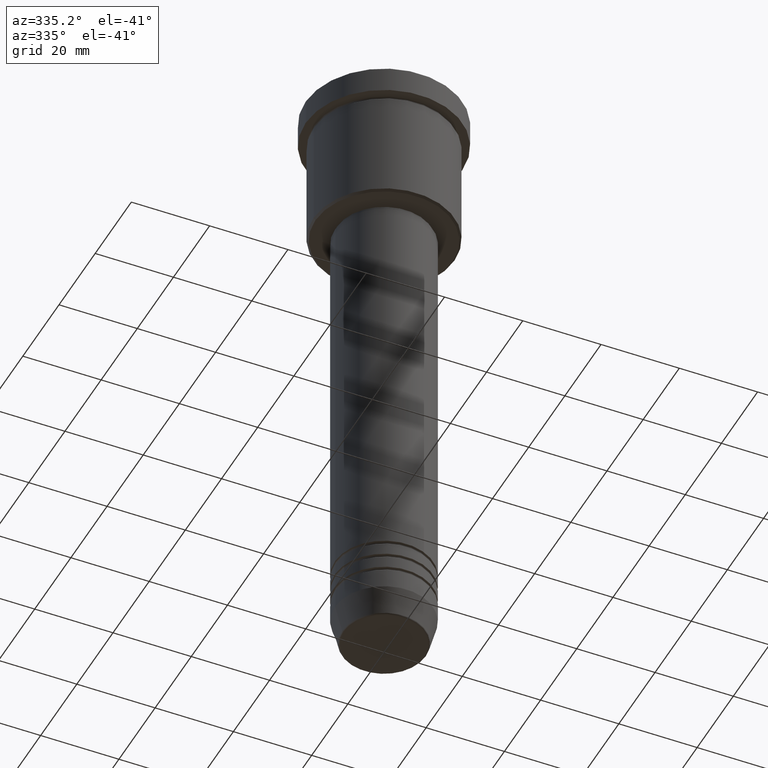
[diagram: clean part render]
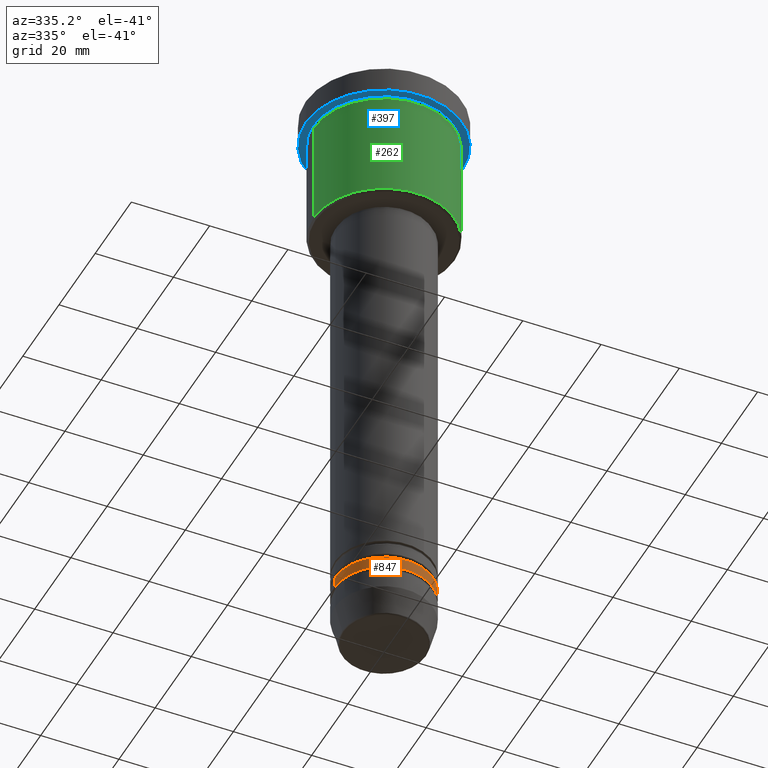
[diagram: same view with three faces highlighted in distinct colors, each labeled with its STEP entity id]
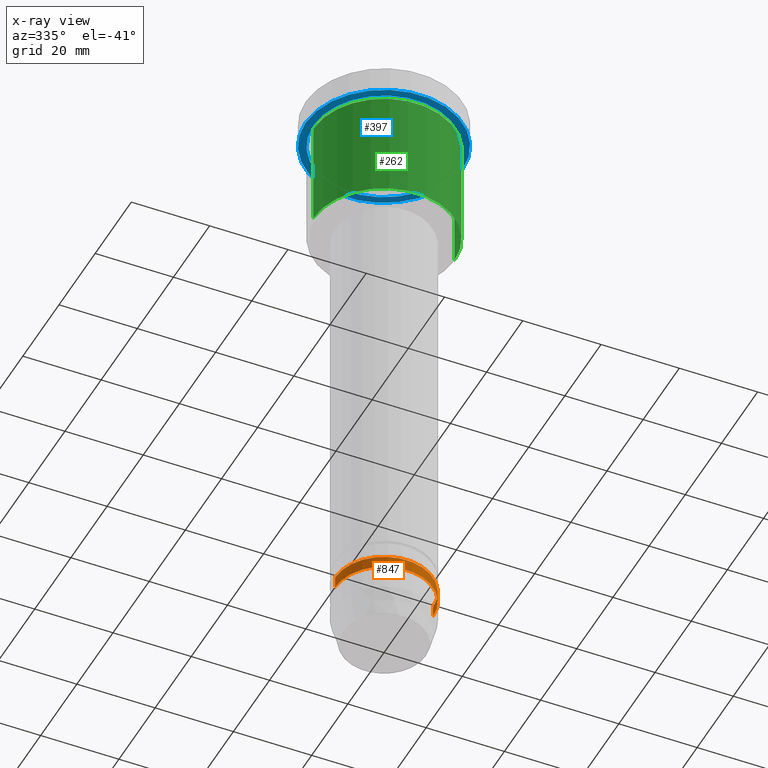
[diagram: x-ray of the same camera — body ghosted, the three highlighted faces saturated]
A machine part, auxiliary view with three faces highlighted in distinct colors.
The next image is the same camera in x-ray (body ghosted, the three faces saturated) — at least one of them is partly hidden behind the body in this view.
Their STEP definitions:

[orange] entity #847 — the highlighted cylindrical surface (partial cylindrical patch) has radius 12.5 mm, axis along (-0, -0, 1).
#36 = DIRECTION ( 'NONE',  ( -0.000000000000000000, -0.000000000000000000, 1.000000000000000000 ) ) ;
#38 = EDGE_CURVE ( 'NONE', #1022, #702, #670, .T. ) ;
#44 = DIRECTION ( 'NONE',  ( -0.000000000000000000, -0.000000000000000000, 1.000000000000000000 ) ) ;
#182 = CARTESIAN_POINT ( 'NONE',  ( 12.50000000000000000, 0.000000000000000000, -146.9999999999999716 ) ) ;
#270 = CIRCLE ( 'NONE', #762, 12.50000000000000000 ) ;
#274 = AXIS2_PLACEMENT_3D ( 'NONE', #1163, #615, #792 ) ;
#275 = VECTOR ( 'NONE', #656, 1000.000000000000000 ) ;
#280 = CARTESIAN_POINT ( 'NONE',  ( -12.50000000000000000, 1.530808498934191521E-15, -146.9999999999999716 ) ) ;
#301 = CARTESIAN_POINT ( 'NONE',  ( 12.50000000000000000, 0.000000000000000000, 0.000000000000000000 ) ) ;
#328 = ORIENTED_EDGE ( 'NONE', *, *, #38, .T. ) ;
#354 = EDGE_CURVE ( 'NONE', #825, #702, #270, .T. ) ;
#361 = CIRCLE ( 'NONE', #274, 12.50000000000000000 ) ;
#376 = VECTOR ( 'NONE', #491, 1000.000000000000000 ) ;
#415 = DIRECTION ( 'NONE',  ( 1.000000000000000000, 0.000000000000000000, 0.000000000000000000 ) ) ;
#491 = DIRECTION ( 'NONE',  ( -0.000000000000000000, -0.000000000000000000, 1.000000000000000000 ) ) ;
#572 = CARTESIAN_POINT ( 'NONE',  ( -12.50000000000000000, 1.530808498934191521E-15, 0.000000000000000000 ) ) ;
#591 = LINE ( 'NONE', #572, #376 ) ;
#597 = ORIENTED_EDGE ( 'NONE', *, *, #354, .F. ) ;
#615 = DIRECTION ( 'NONE',  ( -0.000000000000000000, -0.000000000000000000, 1.000000000000000000 ) ) ;
#656 = DIRECTION ( 'NONE',  ( -0.000000000000000000, -0.000000000000000000, 1.000000000000000000 ) ) ;
#670 = LINE ( 'NONE', #301, #275 ) ;
#694 = EDGE_LOOP ( 'NONE', ( #899, #1025, #328, #597 ) ) ;
#695 = CYLINDRICAL_SURFACE ( 'NONE', #936, 12.50000000000000000 ) ;
#702 = VERTEX_POINT ( 'NONE', #736 ) ;
#736 = CARTESIAN_POINT ( 'NONE',  ( 12.50000000000000000, 0.000000000000000000, -144.0000000000000000 ) ) ;
#746 = EDGE_CURVE ( 'NONE', #1056, #825, #591, .T. ) ;
#747 = CARTESIAN_POINT ( 'NONE',  ( -12.50000000000000000, 1.530808498934191521E-15, -144.0000000000000000 ) ) ;
#761 = DIRECTION ( 'NONE',  ( 1.000000000000000000, 0.000000000000000000, 0.000000000000000000 ) ) ;
#762 = AXIS2_PLACEMENT_3D ( 'NONE', #1120, #36, #761 ) ;
#792 = DIRECTION ( 'NONE',  ( 1.000000000000000000, 0.000000000000000000, 0.000000000000000000 ) ) ;
#825 = VERTEX_POINT ( 'NONE', #747 ) ;
#847 = ADVANCED_FACE ( 'NONE', ( #1143 ), #695, .T. ) ;
#882 = EDGE_CURVE ( 'NONE', #1056, #1022, #361, .T. ) ;
#899 = ORIENTED_EDGE ( 'NONE', *, *, #746, .F. ) ;
#936 = AXIS2_PLACEMENT_3D ( 'NONE', #1055, #44, #415 ) ;
#1022 = VERTEX_POINT ( 'NONE', #182 ) ;
#1025 = ORIENTED_EDGE ( 'NONE', *, *, #882, .T. ) ;
#1055 = CARTESIAN_POINT ( 'NONE',  ( 0.000000000000000000, 0.000000000000000000, 0.000000000000000000 ) ) ;
#1056 = VERTEX_POINT ( 'NONE', #280 ) ;
#1120 = CARTESIAN_POINT ( 'NONE',  ( 0.000000000000000000, 0.000000000000000000, -144.0000000000000000 ) ) ;
#1143 = FACE_OUTER_BOUND ( 'NONE', #694, .T. ) ;
#1163 = CARTESIAN_POINT ( 'NONE',  ( 0.000000000000000000, 0.000000000000000000, -146.9999999999999716 ) ) ;

[blue] entity #397 — the highlighted planar face has unit normal (0, 0, -1).
#16 = CARTESIAN_POINT ( 'NONE',  ( 18.00000000000000000, 2.204364238465235428E-15, -6.999999999999995559 ) ) ;
#33 = CARTESIAN_POINT ( 'NONE',  ( 0.000000000000000000, 0.000000000000000000, -6.999999999999995559 ) ) ;
#52 = CARTESIAN_POINT ( 'NONE',  ( 20.00000000000000000, 0.000000000000000000, -6.999999999999995559 ) ) ;
#59 = AXIS2_PLACEMENT_3D ( 'NONE', #666, #394, #1113 ) ;
#66 = DIRECTION ( 'NONE',  ( -0.000000000000000000, -0.000000000000000000, 1.000000000000000000 ) ) ;
#69 = EDGE_LOOP ( 'NONE', ( #562, #175 ) ) ;
#75 = DIRECTION ( 'NONE',  ( -0.000000000000000000, -0.000000000000000000, 1.000000000000000000 ) ) ;
#80 = CIRCLE ( 'NONE', #231, 18.00000000000000000 ) ;
#87 = DIRECTION ( 'NONE',  ( 1.000000000000000000, 0.000000000000000000, 0.000000000000000000 ) ) ;
#104 = AXIS2_PLACEMENT_3D ( 'NONE', #33, #66, #440 ) ;
#175 = ORIENTED_EDGE ( 'NONE', *, *, #954, .F. ) ;
#209 = CIRCLE ( 'NONE', #104, 20.00000000000000000 ) ;
#220 = VERTEX_POINT ( 'NONE', #920 ) ;
#231 = AXIS2_PLACEMENT_3D ( 'NONE', #457, #75, #1094 ) ;
#244 = DIRECTION ( 'NONE',  ( -1.000000000000000000, 0.000000000000000000, -0.000000000000000000 ) ) ;
#264 = CARTESIAN_POINT ( 'NONE',  ( -18.00000000000000000, 0.000000000000000000, -6.999999999999995559 ) ) ;
#290 = AXIS2_PLACEMENT_3D ( 'NONE', #854, #632, #87 ) ;
#326 = FACE_OUTER_BOUND ( 'NONE', #69, .T. ) ;
#332 = VERTEX_POINT ( 'NONE', #16 ) ;
#394 = DIRECTION ( 'NONE',  ( -0.000000000000000000, -0.000000000000000000, 1.000000000000000000 ) ) ;
#397 = ADVANCED_FACE ( 'NONE', ( #852, #326 ), #680, .T. ) ;
#440 = DIRECTION ( 'NONE',  ( 1.000000000000000000, 0.000000000000000000, 0.000000000000000000 ) ) ;
#457 = CARTESIAN_POINT ( 'NONE',  ( 0.000000000000000000, 0.000000000000000000, -6.999999999999995559 ) ) ;
#473 = EDGE_CURVE ( 'NONE', #835, #220, #209, .T. ) ;
#562 = ORIENTED_EDGE ( 'NONE', *, *, #473, .F. ) ;
#563 = CIRCLE ( 'NONE', #290, 20.00000000000000000 ) ;
#632 = DIRECTION ( 'NONE',  ( -0.000000000000000000, -0.000000000000000000, 1.000000000000000000 ) ) ;
#666 = CARTESIAN_POINT ( 'NONE',  ( 0.000000000000000000, 0.000000000000000000, -6.999999999999995559 ) ) ;
#672 = ORIENTED_EDGE ( 'NONE', *, *, #1078, .T. ) ;
#680 = PLANE ( 'NONE',  #1130 ) ;
#835 = VERTEX_POINT ( 'NONE', #52 ) ;
#841 = CIRCLE ( 'NONE', #59, 18.00000000000000000 ) ;
#852 = FACE_BOUND ( 'NONE', #1054, .T. ) ;
#854 = CARTESIAN_POINT ( 'NONE',  ( 0.000000000000000000, 0.000000000000000000, -6.999999999999995559 ) ) ;
#868 = VERTEX_POINT ( 'NONE', #264 ) ;
#874 = ORIENTED_EDGE ( 'NONE', *, *, #1174, .T. ) ;
#920 = CARTESIAN_POINT ( 'NONE',  ( -20.00000000000000000, 2.449293598294706513E-15, -6.999999999999995559 ) ) ;
#954 = EDGE_CURVE ( 'NONE', #220, #835, #563, .T. ) ;
#969 = CARTESIAN_POINT ( 'NONE',  ( 0.000000000000000000, 20.00000000000000000, -6.999999999999995559 ) ) ;
#1040 = DIRECTION ( 'NONE',  ( 0.000000000000000000, 0.000000000000000000, -1.000000000000000000 ) ) ;
#1054 = EDGE_LOOP ( 'NONE', ( #874, #672 ) ) ;
#1078 = EDGE_CURVE ( 'NONE', #332, #868, #80, .T. ) ;
#1094 = DIRECTION ( 'NONE',  ( -1.000000000000000000, 0.000000000000000000, 0.000000000000000000 ) ) ;
#1113 = DIRECTION ( 'NONE',  ( -1.000000000000000000, 0.000000000000000000, 0.000000000000000000 ) ) ;
#1130 = AXIS2_PLACEMENT_3D ( 'NONE', #969, #1040, #244 ) ;
#1174 = EDGE_CURVE ( 'NONE', #868, #332, #841, .T. ) ;

[green] entity #262 — the highlighted cylindrical surface (partial cylindrical patch) has radius 18 mm, axis along (-0, -0, 1).
#4 = EDGE_CURVE ( 'NONE', #368, #257, #327, .T. ) ;
#172 = CARTESIAN_POINT ( 'NONE',  ( 0.000000000000000000, 0.000000000000000000, 0.000000000000000000 ) ) ;
#183 = AXIS2_PLACEMENT_3D ( 'NONE', #172, #240, #498 ) ;
#199 = DIRECTION ( 'NONE',  ( -0.000000000000000000, -0.000000000000000000, 1.000000000000000000 ) ) ;
#240 = DIRECTION ( 'NONE',  ( -0.000000000000000000, -0.000000000000000000, 1.000000000000000000 ) ) ;
#257 = VERTEX_POINT ( 'NONE', #756 ) ;
#262 = ADVANCED_FACE ( 'NONE', ( #960 ), #1051, .T. ) ;
#277 = CARTESIAN_POINT ( 'NONE',  ( -18.00000000000000000, 2.204364238465235428E-15, -35.50000000000000711 ) ) ;
#298 = CARTESIAN_POINT ( 'NONE',  ( -18.00000000000000000, 2.204364238465235428E-15, 0.000000000000000000 ) ) ;
#318 = VECTOR ( 'NONE', #592, 1000.000000000000000 ) ;
#319 = LINE ( 'NONE', #1158, #318 ) ;
#327 = LINE ( 'NONE', #298, #410 ) ;
#368 = VERTEX_POINT ( 'NONE', #277 ) ;
#409 = AXIS2_PLACEMENT_3D ( 'NONE', #844, #827, #571 ) ;
#410 = VECTOR ( 'NONE', #718, 1000.000000000000000 ) ;
#418 = EDGE_CURVE ( 'NONE', #537, #1004, #319, .T. ) ;
#437 = ORIENTED_EDGE ( 'NONE', *, *, #1122, .F. ) ;
#498 = DIRECTION ( 'NONE',  ( 1.000000000000000000, 0.000000000000000000, 0.000000000000000000 ) ) ;
#537 = VERTEX_POINT ( 'NONE', #1066 ) ;
#571 = DIRECTION ( 'NONE',  ( 1.000000000000000000, 0.000000000000000000, 0.000000000000000000 ) ) ;
#592 = DIRECTION ( 'NONE',  ( -0.000000000000000000, -0.000000000000000000, 1.000000000000000000 ) ) ;
#595 = EDGE_CURVE ( 'NONE', #368, #537, #690, .T. ) ;
#640 = CARTESIAN_POINT ( 'NONE',  ( 0.000000000000000000, 0.000000000000000000, -35.50000000000000711 ) ) ;
#669 = AXIS2_PLACEMENT_3D ( 'NONE', #640, #199, #918 ) ;
#690 = CIRCLE ( 'NONE', #669, 18.00000000000000000 ) ;
#718 = DIRECTION ( 'NONE',  ( -0.000000000000000000, -0.000000000000000000, 1.000000000000000000 ) ) ;
#756 = CARTESIAN_POINT ( 'NONE',  ( -18.00000000000000000, 2.204364238465235428E-15, -7.999999999999996447 ) ) ;
#827 = DIRECTION ( 'NONE',  ( -0.000000000000000000, -0.000000000000000000, 1.000000000000000000 ) ) ;
#844 = CARTESIAN_POINT ( 'NONE',  ( 0.000000000000000000, 0.000000000000000000, -7.999999999999996447 ) ) ;
#886 = ORIENTED_EDGE ( 'NONE', *, *, #595, .T. ) ;
#901 = CARTESIAN_POINT ( 'NONE',  ( 18.00000000000000000, 0.000000000000000000, -7.999999999999996447 ) ) ;
#904 = EDGE_LOOP ( 'NONE', ( #1061, #886, #919, #437 ) ) ;
#918 = DIRECTION ( 'NONE',  ( -1.000000000000000000, 0.000000000000000000, 0.000000000000000000 ) ) ;
#919 = ORIENTED_EDGE ( 'NONE', *, *, #418, .T. ) ;
#960 = FACE_OUTER_BOUND ( 'NONE', #904, .T. ) ;
#1004 = VERTEX_POINT ( 'NONE', #901 ) ;
#1051 = CYLINDRICAL_SURFACE ( 'NONE', #183, 18.00000000000000000 ) ;
#1061 = ORIENTED_EDGE ( 'NONE', *, *, #4, .F. ) ;
#1066 = CARTESIAN_POINT ( 'NONE',  ( 18.00000000000000000, 0.000000000000000000, -35.50000000000000711 ) ) ;
#1122 = EDGE_CURVE ( 'NONE', #257, #1004, #1172, .T. ) ;
#1158 = CARTESIAN_POINT ( 'NONE',  ( 18.00000000000000000, 0.000000000000000000, 0.000000000000000000 ) ) ;
#1172 = CIRCLE ( 'NONE', #409, 18.00000000000000000 ) ;